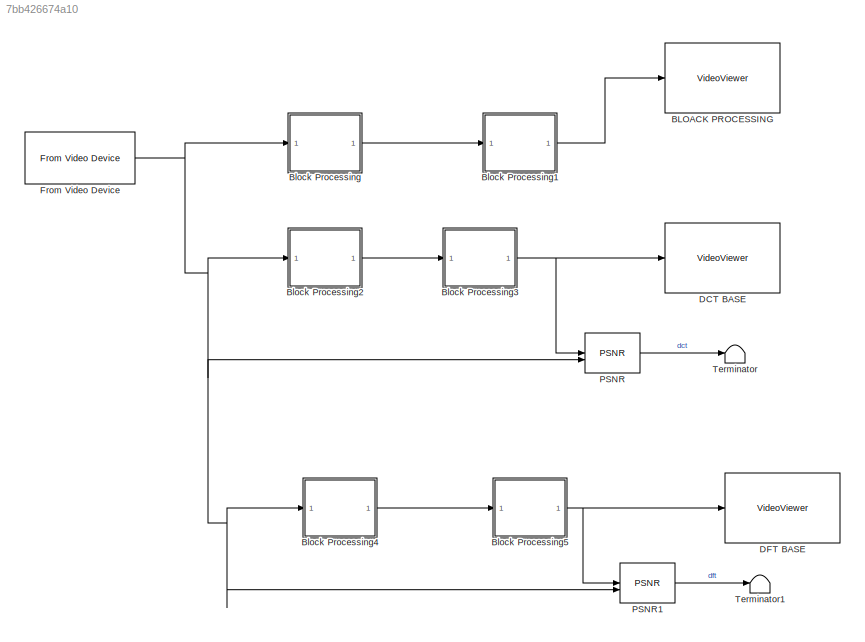
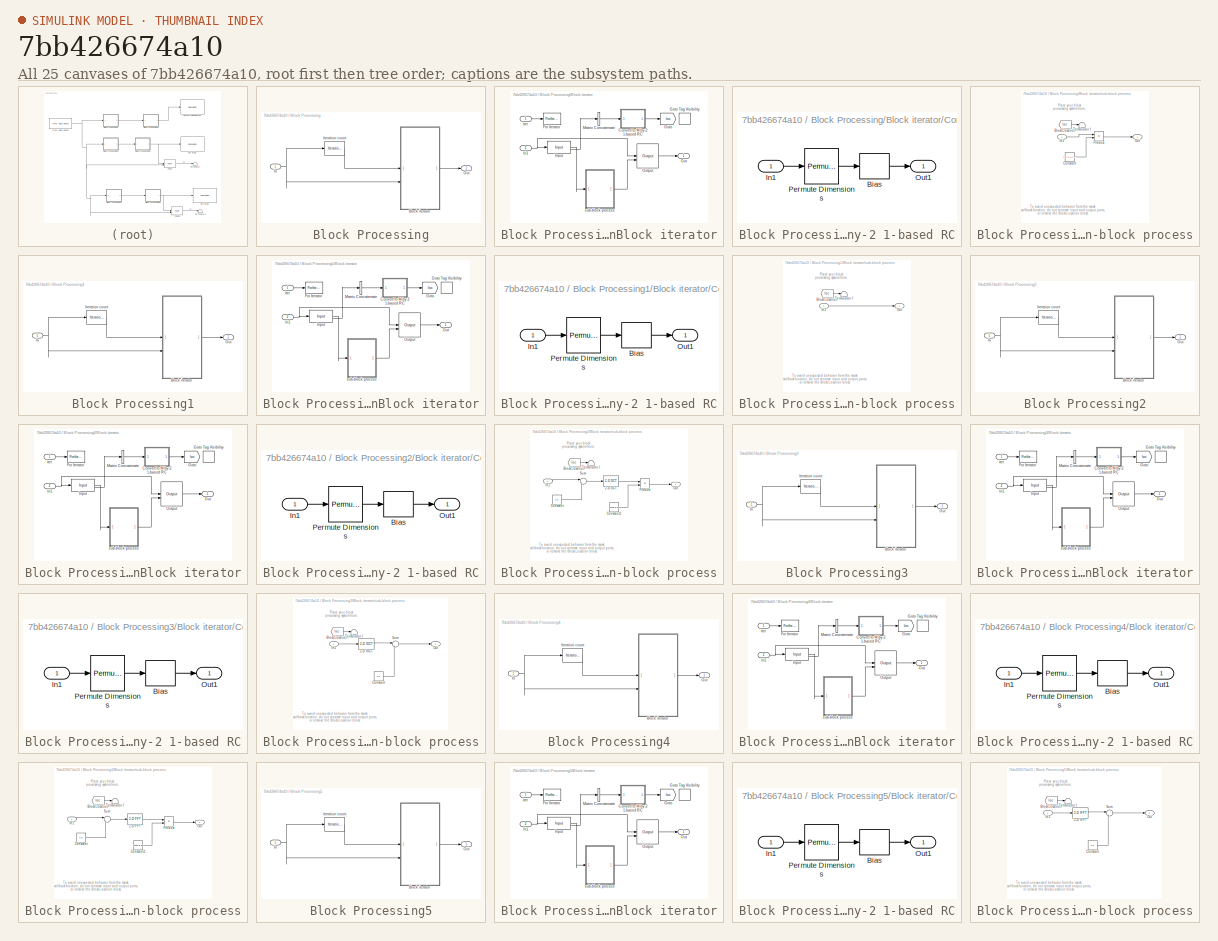
[diagram: thumbnail index - all 25 canvases of the model, root first then tree order]
MODEL slx_7bb426674a10
KIND model
CONFIG AbsTol = auto
CONFIG EnableMultiTasking = off
CONFIG FixedStep = auto
CONFIG MaxStep = auto
CONFIG MinStep = auto
CONFIG RelTol = 1e-3
CONFIG SampleTimeConstraint = Unconstrained
CONFIG SolverName = VariableStepAuto
CONFIG StartTime = 0.0
CONFIG StopTime = 1
BLOCK [VideoViewer] BLOACK PROCESSING
  FigPos = [661 668 418 304]
  ScopeSpecificationString = vipscopes.VideoViewerScopeCfg('CurrentConfiguration', extmgr.ConfigurationSet(extmgr.Configuration('Core','General UI',true),extmgr.Configuration('Core','Source UI',true),extmgr.Configuration('Sources','WiredSimulink',true),extmgr.Configuration('Visuals','Video',true),extmgr.Configuration('Tools','Image Navigation Tools',true),extmgr.Configuration('Tools','Image Tool',true),extmgr.Configuration('T...<+75ch>  <repeated x3 — deduplicated; at blocks: BLOACK PROCESSING, DCT BASE, DFT BASE>
BLOCK [SubSystem] Block Processing
  CopyFcn = set_param(gcb,'LinkStatus','none');
  TreatAsAtomicUnit = on
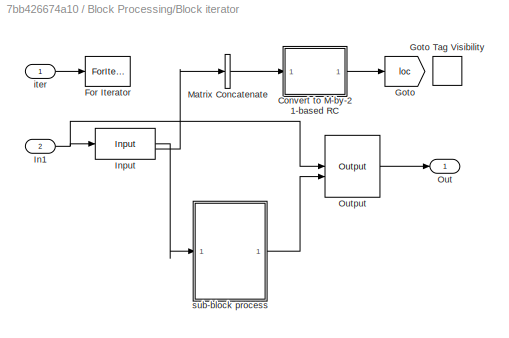
BLOCK [SubSystem] Block Processing/Block iterator
  CopyFcn = set_param(gcb,'ReferenceBlock','');
BLOCK [SubSystem] Block Processing/Block iterator/Convert to M-by-2 1-based RC
BLOCK [Bias] Block Processing/Block iterator/Convert to M-by-2 1-based RC/Bias
  Bias = 1
  SaturateOnIntegerOverflow = off
BLOCK [Inport] Block Processing/Block iterator/Convert to M-by-2 1-based RC/In1
BLOCK [Outport] Block Processing/Block iterator/Convert to M-by-2 1-based RC/Out1
  VectorParamsAs1DForOutWhenUnconnected = off
BLOCK [PermuteDimensions] Block Processing/Block iterator/Convert to M-by-2 1-based RC/Permute Dimensions
BLOCK [ForIterator] Block Processing/Block iterator/For Iterator
  IndexMode = Zero-based
  IterationLimit = (sz(1)/M)*(sz(2)/N)
  IterationSource = external
  IterationVariableDataType = double
  ShowIterationPort = off
BLOCK [Goto] Block Processing/Block iterator/Goto
  GotoTag = loc
  TagVisibility = scoped
BLOCK [GotoTagVisibility] Block Processing/Block iterator/Goto Tag Visibility
  GotoTag = loc
BLOCK [Inport] Block Processing/Block iterator/In1
  Port = 2
BLOCK [Reference] Block Processing/Block iterator/Input  REF=vipmisc/Input
  SourceBlock = vipmisc/Input
  SourceType = Input for block processing
BLOCK [Concatenate] Block Processing/Block iterator/Matrix Concatenate
  ConcatenateDimension = 2
  Mode = Multidimensional array
  NumInputs = 1
BLOCK [Outport] Block Processing/Block iterator/Out
  VectorParamsAs1DForOutWhenUnconnected = off
BLOCK [Reference] Block Processing/Block iterator/Output  REF=vipmisc/Output
  SourceBlock = vipmisc/Output
BLOCK [Inport] Block Processing/Block iterator/iter
BLOCK [SubSystem] Block Processing/Block iterator/sub-block process
BLOCK [From] Block Processing/Block iterator/sub-block process/Block Location
  GotoTag = loc
  TagVisibility = scoped
BLOCK [Constant] Block Processing/Block iterator/sub-block process/Constant
  Value = [1 1 1 1 1 1 1 1; 1 1 1 1 1 1 1 0; 1 1 1 1 1 1 0 0; 1 1 1 1 1 0 0 0; 1 1 1 1 0 0 0 0; 1 1 1 0 0 0 0 0; 1 1 0 0 0 0 0 0; 1 0 0 0 0 0 0 0]
BLOCK [Inport] Block Processing/Block iterator/sub-block process/In1
BLOCK [Outport] Block Processing/Block iterator/sub-block process/Out
  VectorParamsAs1DForOutWhenUnconnected = off
BLOCK [Product] Block Processing/Block iterator/sub-block process/Product
BLOCK [Terminator] Block Processing/Block iterator/sub-block process/Terminator I
BLOCK [Inport] Block Processing/In
BLOCK [Reference] Block Processing/Iteration count  REF=vipmisc/Iteration count
  SourceBlock = vipmisc/Iteration count
  SourceType = Block processing iteration counter
BLOCK [Outport] Block Processing/Out
  VectorParamsAs1DForOutWhenUnconnected = off
BLOCK [SubSystem] Block Processing1
  CopyFcn = set_param(gcb,'LinkStatus','none');
  TreatAsAtomicUnit = on
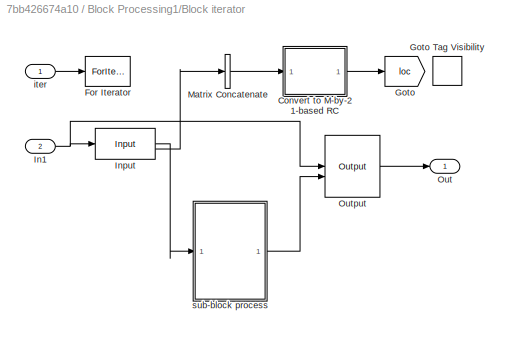
BLOCK [SubSystem] Block Processing1/Block iterator
  CopyFcn = set_param(gcb,'ReferenceBlock','');
BLOCK [SubSystem] Block Processing1/Block iterator/Convert to M-by-2 1-based RC
BLOCK [Bias] Block Processing1/Block iterator/Convert to M-by-2 1-based RC/Bias
  Bias = 1
  SaturateOnIntegerOverflow = off
BLOCK [Inport] Block Processing1/Block iterator/Convert to M-by-2 1-based RC/In1
BLOCK [Outport] Block Processing1/Block iterator/Convert to M-by-2 1-based RC/Out1
  VectorParamsAs1DForOutWhenUnconnected = off
BLOCK [PermuteDimensions] Block Processing1/Block iterator/Convert to M-by-2 1-based RC/Permute Dimensions
BLOCK [ForIterator] Block Processing1/Block iterator/For Iterator
  IndexMode = Zero-based
  IterationLimit = (sz(1)/M)*(sz(2)/N)
  IterationSource = external
  IterationVariableDataType = double
  ShowIterationPort = off
BLOCK [Goto] Block Processing1/Block iterator/Goto
  GotoTag = loc
  TagVisibility = scoped
BLOCK [GotoTagVisibility] Block Processing1/Block iterator/Goto Tag Visibility
  GotoTag = loc
BLOCK [Inport] Block Processing1/Block iterator/In1
  Port = 2
BLOCK [Reference] Block Processing1/Block iterator/Input  REF=vipmisc/Input
  SourceBlock = vipmisc/Input
  SourceType = Input for block processing
BLOCK [Concatenate] Block Processing1/Block iterator/Matrix Concatenate
  ConcatenateDimension = 2
  Mode = Multidimensional array
  NumInputs = 1
BLOCK [Outport] Block Processing1/Block iterator/Out
  VectorParamsAs1DForOutWhenUnconnected = off
BLOCK [Reference] Block Processing1/Block iterator/Output  REF=vipmisc/Output
  SourceBlock = vipmisc/Output
BLOCK [Inport] Block Processing1/Block iterator/iter
BLOCK [SubSystem] Block Processing1/Block iterator/sub-block process
BLOCK [From] Block Processing1/Block iterator/sub-block process/Block Location
  GotoTag = loc
  TagVisibility = scoped
BLOCK [Inport] Block Processing1/Block iterator/sub-block process/In1
BLOCK [Outport] Block Processing1/Block iterator/sub-block process/Out
  VectorParamsAs1DForOutWhenUnconnected = off
BLOCK [Terminator] Block Processing1/Block iterator/sub-block process/Terminator I
BLOCK [Inport] Block Processing1/In
BLOCK [Reference] Block Processing1/Iteration count  REF=vipmisc/Iteration count
  SourceBlock = vipmisc/Iteration count
  SourceType = Block processing iteration counter
BLOCK [Outport] Block Processing1/Out
  VectorParamsAs1DForOutWhenUnconnected = off
BLOCK [SubSystem] Block Processing2
  CopyFcn = set_param(gcb,'LinkStatus','none');
  TreatAsAtomicUnit = on
BLOCK [SubSystem] Block Processing2/Block iterator
  CopyFcn = set_param(gcb,'ReferenceBlock','');
BLOCK [SubSystem] Block Processing2/Block iterator/Convert to M-by-2 1-based RC
BLOCK [Bias] Block Processing2/Block iterator/Convert to M-by-2 1-based RC/Bias
  Bias = 1
  SaturateOnIntegerOverflow = off
BLOCK [Inport] Block Processing2/Block iterator/Convert to M-by-2 1-based RC/In1
BLOCK [Outport] Block Processing2/Block iterator/Convert to M-by-2 1-based RC/Out1
  VectorParamsAs1DForOutWhenUnconnected = off
BLOCK [PermuteDimensions] Block Processing2/Block iterator/Convert to M-by-2 1-based RC/Permute Dimensions
BLOCK [ForIterator] Block Processing2/Block iterator/For Iterator
  IndexMode = Zero-based
  IterationLimit = (sz(1)/M)*(sz(2)/N)
  IterationSource = external
  IterationVariableDataType = double
  ShowIterationPort = off
BLOCK [Goto] Block Processing2/Block iterator/Goto
  GotoTag = loc
  TagVisibility = scoped
BLOCK [GotoTagVisibility] Block Processing2/Block iterator/Goto Tag Visibility
  GotoTag = loc
BLOCK [Inport] Block Processing2/Block iterator/In1
  Port = 2
BLOCK [Reference] Block Processing2/Block iterator/Input  REF=vipmisc/Input
  SourceBlock = vipmisc/Input
  SourceType = Input for block processing
BLOCK [Concatenate] Block Processing2/Block iterator/Matrix Concatenate
  ConcatenateDimension = 2
  Mode = Multidimensional array
  NumInputs = 1
BLOCK [Outport] Block Processing2/Block iterator/Out
  VectorParamsAs1DForOutWhenUnconnected = off
BLOCK [Reference] Block Processing2/Block iterator/Output  REF=vipmisc/Output
  SourceBlock = vipmisc/Output
BLOCK [Inport] Block Processing2/Block iterator/iter
BLOCK [SubSystem] Block Processing2/Block iterator/sub-block process
BLOCK [Reference] Block Processing2/Block iterator/sub-block process/2-D DCT  REF=visiontransforms/2-D DCT
  SourceBlock = visiontransforms/2-D DCT
  SourceType = 2-D DCT
BLOCK [From] Block Processing2/Block iterator/sub-block process/Block Location
  GotoTag = loc
  TagVisibility = scoped
BLOCK [Constant] Block Processing2/Block iterator/sub-block process/Constant
  Value = 0.5
BLOCK [Constant] Block Processing2/Block iterator/sub-block process/Constant1
  Value = ones(8,8)
  VectorParams1D = off
BLOCK [Inport] Block Processing2/Block iterator/sub-block process/In1
BLOCK [Outport] Block Processing2/Block iterator/sub-block process/Out
  VectorParamsAs1DForOutWhenUnconnected = off
BLOCK [Product] Block Processing2/Block iterator/sub-block process/Product
BLOCK [Sum] Block Processing2/Block iterator/sub-block process/Sum
  Inputs = |+-
BLOCK [Terminator] Block Processing2/Block iterator/sub-block process/Terminator I
BLOCK [Inport] Block Processing2/In
BLOCK [Reference] Block Processing2/Iteration count  REF=vipmisc/Iteration count
  SourceBlock = vipmisc/Iteration count
  SourceType = Block processing iteration counter
BLOCK [Outport] Block Processing2/Out
  VectorParamsAs1DForOutWhenUnconnected = off
BLOCK [SubSystem] Block Processing3
  CopyFcn = set_param(gcb,'LinkStatus','none');
  TreatAsAtomicUnit = on
BLOCK [SubSystem] Block Processing3/Block iterator
  CopyFcn = set_param(gcb,'ReferenceBlock','');
BLOCK [SubSystem] Block Processing3/Block iterator/Convert to M-by-2 1-based RC
BLOCK [Bias] Block Processing3/Block iterator/Convert to M-by-2 1-based RC/Bias
  Bias = 1
  SaturateOnIntegerOverflow = off
BLOCK [Inport] Block Processing3/Block iterator/Convert to M-by-2 1-based RC/In1
BLOCK [Outport] Block Processing3/Block iterator/Convert to M-by-2 1-based RC/Out1
  VectorParamsAs1DForOutWhenUnconnected = off
BLOCK [PermuteDimensions] Block Processing3/Block iterator/Convert to M-by-2 1-based RC/Permute Dimensions
BLOCK [ForIterator] Block Processing3/Block iterator/For Iterator
  IndexMode = Zero-based
  IterationLimit = (sz(1)/M)*(sz(2)/N)
  IterationSource = external
  IterationVariableDataType = double
  ShowIterationPort = off
BLOCK [Goto] Block Processing3/Block iterator/Goto
  GotoTag = loc
  TagVisibility = scoped
BLOCK [GotoTagVisibility] Block Processing3/Block iterator/Goto Tag Visibility
  GotoTag = loc
BLOCK [Inport] Block Processing3/Block iterator/In1
  Port = 2
BLOCK [Reference] Block Processing3/Block iterator/Input  REF=vipmisc/Input
  SourceBlock = vipmisc/Input
  SourceType = Input for block processing
BLOCK [Concatenate] Block Processing3/Block iterator/Matrix Concatenate
  ConcatenateDimension = 2
  Mode = Multidimensional array
  NumInputs = 1
BLOCK [Outport] Block Processing3/Block iterator/Out
  VectorParamsAs1DForOutWhenUnconnected = off
BLOCK [Reference] Block Processing3/Block iterator/Output  REF=vipmisc/Output
  SourceBlock = vipmisc/Output
BLOCK [Inport] Block Processing3/Block iterator/iter
BLOCK [SubSystem] Block Processing3/Block iterator/sub-block process
BLOCK [Reference] Block Processing3/Block iterator/sub-block process/2-D IDCT  REF=visiontransforms/2-D IDCT
  SourceBlock = visiontransforms/2-D IDCT
  SourceType = 2-D IDCT
BLOCK [From] Block Processing3/Block iterator/sub-block process/Block Location
  GotoTag = loc
  TagVisibility = scoped
BLOCK [Constant] Block Processing3/Block iterator/sub-block process/Constant
  Value = 0.5
BLOCK [Inport] Block Processing3/Block iterator/sub-block process/In1
BLOCK [Outport] Block Processing3/Block iterator/sub-block process/Out
  VectorParamsAs1DForOutWhenUnconnected = off
BLOCK [Sum] Block Processing3/Block iterator/sub-block process/Sum
  Inputs = |++
  OutDataTypeStr = single
BLOCK [Terminator] Block Processing3/Block iterator/sub-block process/Terminator I
BLOCK [Inport] Block Processing3/In
BLOCK [Reference] Block Processing3/Iteration count  REF=vipmisc/Iteration count
  SourceBlock = vipmisc/Iteration count
  SourceType = Block processing iteration counter
BLOCK [Outport] Block Processing3/Out
  VectorParamsAs1DForOutWhenUnconnected = off
BLOCK [SubSystem] Block Processing4
  CopyFcn = set_param(gcb,'LinkStatus','none');
  TreatAsAtomicUnit = on
BLOCK [SubSystem] Block Processing4/Block iterator
  CopyFcn = set_param(gcb,'ReferenceBlock','');
BLOCK [SubSystem] Block Processing4/Block iterator/Convert to M-by-2 1-based RC
BLOCK [Bias] Block Processing4/Block iterator/Convert to M-by-2 1-based RC/Bias
  Bias = 1
  SaturateOnIntegerOverflow = off
BLOCK [Inport] Block Processing4/Block iterator/Convert to M-by-2 1-based RC/In1
BLOCK [Outport] Block Processing4/Block iterator/Convert to M-by-2 1-based RC/Out1
  VectorParamsAs1DForOutWhenUnconnected = off
BLOCK [PermuteDimensions] Block Processing4/Block iterator/Convert to M-by-2 1-based RC/Permute Dimensions
BLOCK [ForIterator] Block Processing4/Block iterator/For Iterator
  IndexMode = Zero-based
  IterationLimit = (sz(1)/M)*(sz(2)/N)
  IterationSource = external
  IterationVariableDataType = double
  ShowIterationPort = off
BLOCK [Goto] Block Processing4/Block iterator/Goto
  GotoTag = loc
  TagVisibility = scoped
BLOCK [GotoTagVisibility] Block Processing4/Block iterator/Goto Tag Visibility
  GotoTag = loc
BLOCK [Inport] Block Processing4/Block iterator/In1
  Port = 2
BLOCK [Reference] Block Processing4/Block iterator/Input  REF=vipmisc/Input
  SourceBlock = vipmisc/Input
  SourceType = Input for block processing
BLOCK [Concatenate] Block Processing4/Block iterator/Matrix Concatenate
  ConcatenateDimension = 2
  Mode = Multidimensional array
  NumInputs = 1
BLOCK [Outport] Block Processing4/Block iterator/Out
  VectorParamsAs1DForOutWhenUnconnected = off
BLOCK [Reference] Block Processing4/Block iterator/Output  REF=vipmisc/Output
  SourceBlock = vipmisc/Output
BLOCK [Inport] Block Processing4/Block iterator/iter
BLOCK [SubSystem] Block Processing4/Block iterator/sub-block process
BLOCK [Reference] Block Processing4/Block iterator/sub-block process/2-D FFT  REF=visiontransforms/2-D FFT
  SourceBlock = visiontransforms/2-D FFT
  SourceType = 2-D FFT
BLOCK [From] Block Processing4/Block iterator/sub-block process/Block Location
  GotoTag = loc
  TagVisibility = scoped
BLOCK [Constant] Block Processing4/Block iterator/sub-block process/Constant
  Value = 0.5
BLOCK [Constant] Block Processing4/Block iterator/sub-block process/Constant1
  Value = ones(8,8)
  VectorParams1D = off
BLOCK [Inport] Block Processing4/Block iterator/sub-block process/In1
BLOCK [Outport] Block Processing4/Block iterator/sub-block process/Out
  VectorParamsAs1DForOutWhenUnconnected = off
BLOCK [Product] Block Processing4/Block iterator/sub-block process/Product
BLOCK [Sum] Block Processing4/Block iterator/sub-block process/Sum
  Inputs = |+-
BLOCK [Terminator] Block Processing4/Block iterator/sub-block process/Terminator I
BLOCK [Inport] Block Processing4/In
BLOCK [Reference] Block Processing4/Iteration count  REF=vipmisc/Iteration count
  SourceBlock = vipmisc/Iteration count
  SourceType = Block processing iteration counter
BLOCK [Outport] Block Processing4/Out
  VectorParamsAs1DForOutWhenUnconnected = off
BLOCK [SubSystem] Block Processing5
  CopyFcn = set_param(gcb,'LinkStatus','none');
  TreatAsAtomicUnit = on
BLOCK [SubSystem] Block Processing5/Block iterator
  CopyFcn = set_param(gcb,'ReferenceBlock','');
BLOCK [SubSystem] Block Processing5/Block iterator/Convert to M-by-2 1-based RC
BLOCK [Bias] Block Processing5/Block iterator/Convert to M-by-2 1-based RC/Bias
  Bias = 1
  SaturateOnIntegerOverflow = off
BLOCK [Inport] Block Processing5/Block iterator/Convert to M-by-2 1-based RC/In1
BLOCK [Outport] Block Processing5/Block iterator/Convert to M-by-2 1-based RC/Out1
  VectorParamsAs1DForOutWhenUnconnected = off
BLOCK [PermuteDimensions] Block Processing5/Block iterator/Convert to M-by-2 1-based RC/Permute Dimensions
BLOCK [ForIterator] Block Processing5/Block iterator/For Iterator
  IndexMode = Zero-based
  IterationLimit = (sz(1)/M)*(sz(2)/N)
  IterationSource = external
  IterationVariableDataType = double
  ShowIterationPort = off
BLOCK [Goto] Block Processing5/Block iterator/Goto
  GotoTag = loc
  TagVisibility = scoped
BLOCK [GotoTagVisibility] Block Processing5/Block iterator/Goto Tag Visibility
  GotoTag = loc
BLOCK [Inport] Block Processing5/Block iterator/In1
  Port = 2
BLOCK [Reference] Block Processing5/Block iterator/Input  REF=vipmisc/Input
  SourceBlock = vipmisc/Input
  SourceType = Input for block processing
BLOCK [Concatenate] Block Processing5/Block iterator/Matrix Concatenate
  ConcatenateDimension = 2
  Mode = Multidimensional array
  NumInputs = 1
BLOCK [Outport] Block Processing5/Block iterator/Out
  VectorParamsAs1DForOutWhenUnconnected = off
BLOCK [Reference] Block Processing5/Block iterator/Output  REF=vipmisc/Output
  SourceBlock = vipmisc/Output
BLOCK [Inport] Block Processing5/Block iterator/iter
BLOCK [SubSystem] Block Processing5/Block iterator/sub-block process
BLOCK [Reference] Block Processing5/Block iterator/sub-block process/2-D IFFT  REF=visiontransforms/2-D IFFT
  SourceBlock = visiontransforms/2-D IFFT
  SourceType = 2-D IFFT
BLOCK [From] Block Processing5/Block iterator/sub-block process/Block Location
  GotoTag = loc
  TagVisibility = scoped
BLOCK [Constant] Block Processing5/Block iterator/sub-block process/Constant
  Value = 0.5
BLOCK [Inport] Block Processing5/Block iterator/sub-block process/In1
BLOCK [Outport] Block Processing5/Block iterator/sub-block process/Out
  VectorParamsAs1DForOutWhenUnconnected = off
BLOCK [Sum] Block Processing5/Block iterator/sub-block process/Sum
  Inputs = |++
  OutDataTypeStr = single
BLOCK [Terminator] Block Processing5/Block iterator/sub-block process/Terminator I
BLOCK [Inport] Block Processing5/In
BLOCK [Reference] Block Processing5/Iteration count  REF=vipmisc/Iteration count
  SourceBlock = vipmisc/Iteration count
  SourceType = Block processing iteration counter
BLOCK [Outport] Block Processing5/Out
  VectorParamsAs1DForOutWhenUnconnected = off
BLOCK [VideoViewer] DCT BASE 
  FigPos = [213 604 418 304]
BLOCK [VideoViewer] DFT BASE
  FigPos = [597 705 418 304]
BLOCK [Reference] From Video Device  REF=imaqlib/From Video Device
  SourceBlock = imaqlib/From Video Device
  SourceType = From Video Device
  UserDataPersistent = on
BLOCK [Reference] PSNR  REF=visionstatistics/PSNR
  SourceBlock = visionstatistics/PSNR
  SourceType = PSNR
BLOCK [Reference] PSNR1  REF=visionstatistics/PSNR
  SourceBlock = visionstatistics/PSNR
  SourceType = PSNR
BLOCK [Terminator] Terminator
BLOCK [Terminator] Terminator1
ANNOTATION Block Processing/Block iterator/sub-block process: Place your block processing system here.
ANNOTATION Block Processing/Block iterator/sub-block process: To avoid unexpected behavior from the mask callback function, do not rename input and output ports, or remove the Block Location block.
ANNOTATION Block Processing1/Block iterator/sub-block process: Place your block processing system here.
ANNOTATION Block Processing1/Block iterator/sub-block process: To avoid unexpected behavior from the mask callback function, do not rename input and output ports, or remove the Block Location block.
ANNOTATION Block Processing2/Block iterator/sub-block process: Place your block processing system here.
ANNOTATION Block Processing2/Block iterator/sub-block process: To avoid unexpected behavior from the mask callback function, do not rename input and output ports, or remove the Block Location block.
ANNOTATION Block Processing3/Block iterator/sub-block process: Place your block processing system here.
ANNOTATION Block Processing3/Block iterator/sub-block process: To avoid unexpected behavior from the mask callback function, do not rename input and output ports, or remove the Block Location block.
ANNOTATION Block Processing4/Block iterator/sub-block process: Place your block processing system here.
ANNOTATION Block Processing4/Block iterator/sub-block process: To avoid unexpected behavior from the mask callback function, do not rename input and output ports, or remove the Block Location block.
ANNOTATION Block Processing5/Block iterator/sub-block process: Place your block processing system here.
ANNOTATION Block Processing5/Block iterator/sub-block process: To avoid unexpected behavior from the mask callback function, do not rename input and output ports, or remove the Block Location block.
LINE Block Processing1:1 -> BLOACK PROCESSING:1
LINE Block Processing2:1 -> Block Processing3:1
NET Block Processing3:1 -> DCT BASE :1, PSNR:1
LINE Block Processing4:1 -> Block Processing5:1
NET Block Processing5:1 -> DFT BASE:1, PSNR1:1
LINE Block Processing:1 -> Block Processing1:1
NET From Video Device:1 -> Block Processing2:1, Block Processing4:1, Block Processing:1, PSNR1:2, PSNR:2
LINE PSNR1:1 -> Terminator1:1
LINE PSNR:1 -> Terminator:1
note: NET lines group one-source signal fan-out (src -> all destinations, sorted); 1:1 wires keep LINE
